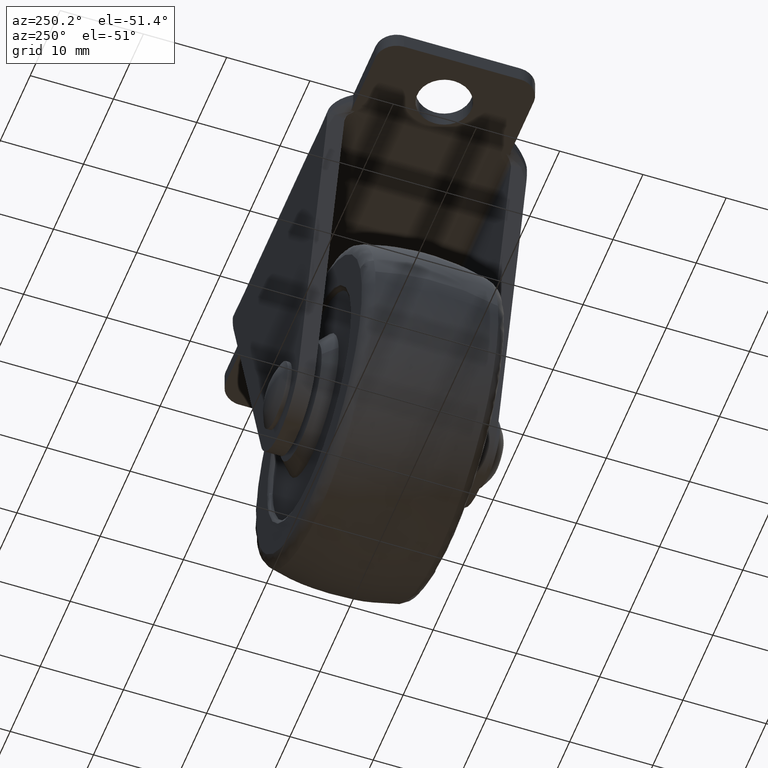
[diagram: clean part render]
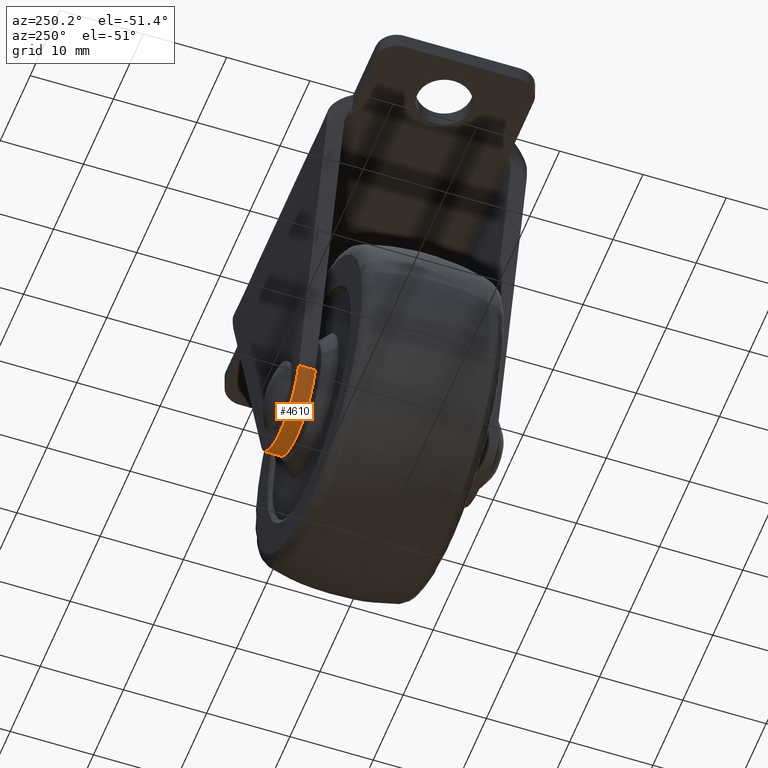
[diagram: same view with one face highlighted and labeled with its STEP entity id]
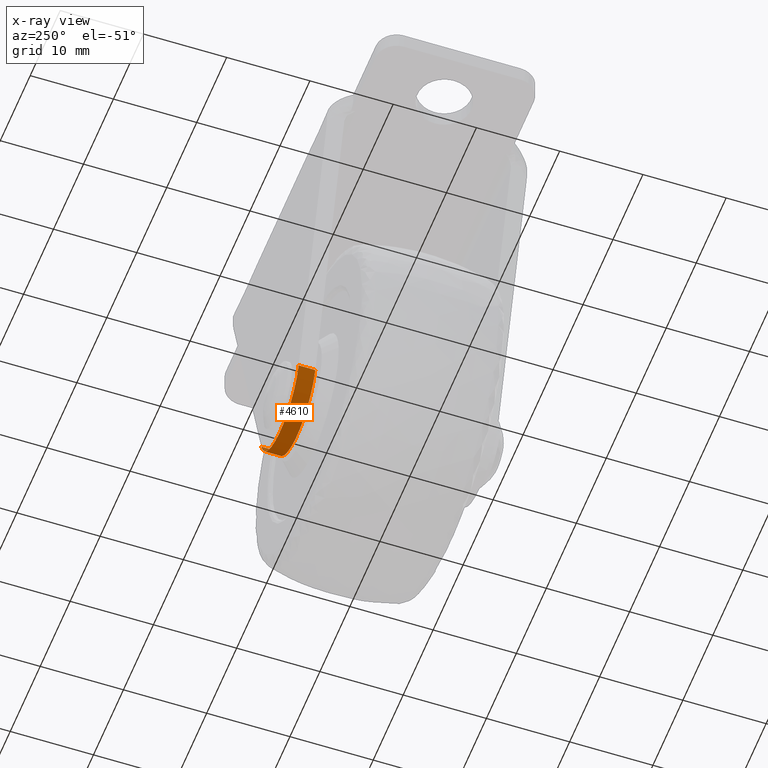
[diagram: x-ray of the same camera — body ghosted, the highlighted face saturated]
A machine part, auxiliary view. The second image highlights one B-rep face of the part: STEP entity #4610.
The next image is the same camera in x-ray: the body ghosted, the highlighted face saturated — about 0% of this face is hidden behind the body in this view.
In plain terms, the highlighted face is a freeform B-spline surface patch.
Its self-contained STEP definition (entity closure, byte-faithful):
#4505=CARTESIAN_POINT('',(-6.246989151439200,12.0,-36.795865473212253));
#4506=VERTEX_POINT('',#4505);
#4512=CARTESIAN_POINT('',(-6.246989151439200,10.0,-36.795865473212253));
#4513=VERTEX_POINT('',#4512);
#4514=CARTESIAN_POINT('',(-6.246989151439200,10.0,-36.795865473212253));
#4515=CARTESIAN_POINT('',(-6.246989151439200,12.0,-36.795865473212253));
#4516=QUASI_UNIFORM_CURVE('',1,(#4514,#4515),.UNSPECIFIED.,.F.,.U.);
#4517=EDGE_CURVE('',#4513,#4506,#4516,.T.);
#4533=CARTESIAN_POINT('',(6.246988000000100,12.0,-36.795865999999812));
#4534=VERTEX_POINT('',#4533);
#4543=CARTESIAN_POINT('',(6.246988000000091,10.0,-36.795865999999812));
#4544=VERTEX_POINT('',#4543);
#4550=CARTESIAN_POINT('',(6.246988000000091,10.0,-36.795865999999812));
#4551=CARTESIAN_POINT('',(6.246988000000100,12.0,-36.795865999999812));
#4552=QUASI_UNIFORM_CURVE('',1,(#4550,#4551),.UNSPECIFIED.,.F.,.U.);
#4553=EDGE_CURVE('',#4544,#4534,#4552,.T.);
#4558=CARTESIAN_POINT('',(-6.291858742044314,9.949999999999998,-36.631722975959583));
#4559=CARTESIAN_POINT('',(-6.291858742044314,12.051250000000000,-36.631722975959583));
#4560=CARTESIAN_POINT('',(-5.017017036463020,9.949999999999998,-41.547461384486702));
#4561=CARTESIAN_POINT('',(-5.017017036463020,12.051250000000001,-41.547461384486702));
#4562=CARTESIAN_POINT('',(0.061115054825354,9.949999999999998,-41.499712679945752));
#4563=CARTESIAN_POINT('',(0.061115054825354,12.051250000000000,-41.499712679945752));
#4564=CARTESIAN_POINT('',(5.139247146113727,9.949999999999998,-41.451963975404801));
#4565=CARTESIAN_POINT('',(5.139247146113727,12.051250000000001,-41.451963975404801));
#4566=CARTESIAN_POINT('',(6.321428123792416,9.949999999999998,-36.513122652647723));
#4567=CARTESIAN_POINT('',(6.321428123792416,12.051250000000000,-36.513122652647723));
#4575=(BOUNDED_SURFACE()B_SPLINE_SURFACE(1,2,((#4558,#4560,#4562,#4564,#4566),(#4559,#4561,#4563,#4565,#4567)),.UNSPECIFIED.,.F.,.F.,.U.)B_SPLINE_SURFACE_WITH_KNOTS((2,2),(3,2,3),(0.0,2.101250000000004),(0.0,8.952517945531298,17.905035891062600),.UNSPECIFIED.)GEOMETRIC_REPRESENTATION_ITEM()RATIONAL_B_SPLINE_SURFACE(((1.0,0.788010753606722,1.0,0.788010753606722,1.0),(1.0,0.788010753606722,1.0,0.788010753606722,1.0)))REPRESENTATION_ITEM('')SURFACE());
#4576=ORIENTED_EDGE('',*,*,#4517,.T.);
#4577=CARTESIAN_POINT('',(-6.246989151439196,12.0,-36.795865473212253));
#4578=CARTESIAN_POINT('',(-4.894658793342986,11.999999999999998,-41.499999796155009));
#4579=CARTESIAN_POINT('',(-0.000000774061473,12.0,-41.500000002530051));
#4580=CARTESIAN_POINT('',(4.894657245220039,11.999999999999998,-41.500000208905092));
#4581=CARTESIAN_POINT('',(6.246988000000084,12.0,-36.795865999999812));
#4589=(BOUNDED_CURVE()B_SPLINE_CURVE(2,(#4577,#4578,#4579,#4580,#4581),.UNSPECIFIED.,.F.,.U.)B_SPLINE_CURVE_WITH_KNOTS((3,2,3),(0.0,0.500000000000000,1.0),.UNSPECIFIED.)CURVE()GEOMETRIC_REPRESENTATION_ITEM()RATIONAL_B_SPLINE_CURVE((1.0,0.798838856094171,1.0,0.798838856094171,1.0))REPRESENTATION_ITEM(''));
#4590=EDGE_CURVE('',#4506,#4534,#4589,.T.);
#4591=ORIENTED_EDGE('',*,*,#4590,.T.);
#4592=ORIENTED_EDGE('',*,*,#4553,.F.);
#4593=CARTESIAN_POINT('',(-6.246989151439196,10.0,-36.795865473212253));
#4594=CARTESIAN_POINT('',(-4.894658793342986,10.0,-41.499999796155009));
#4595=CARTESIAN_POINT('',(-0.000000774061473,10.0,-41.500000002530051));
#4596=CARTESIAN_POINT('',(4.894657245220039,10.0,-41.500000208905092));
#4597=CARTESIAN_POINT('',(6.246988000000084,10.0,-36.795865999999812));
#4605=(BOUNDED_CURVE()B_SPLINE_CURVE(2,(#4593,#4594,#4595,#4596,#4597),.UNSPECIFIED.,.F.,.U.)B_SPLINE_CURVE_WITH_KNOTS((3,2,3),(0.0,0.500000000000000,1.0),.UNSPECIFIED.)CURVE()GEOMETRIC_REPRESENTATION_ITEM()RATIONAL_B_SPLINE_CURVE((1.0,0.798838856094171,1.0,0.798838856094171,1.0))REPRESENTATION_ITEM(''));
#4606=EDGE_CURVE('',#4513,#4544,#4605,.T.);
#4607=ORIENTED_EDGE('',*,*,#4606,.F.);
#4608=EDGE_LOOP('',(#4576,#4591,#4592,#4607));
#4609=FACE_OUTER_BOUND('',#4608,.T.);
#4610=ADVANCED_FACE('',(#4609),#4575,.T.);